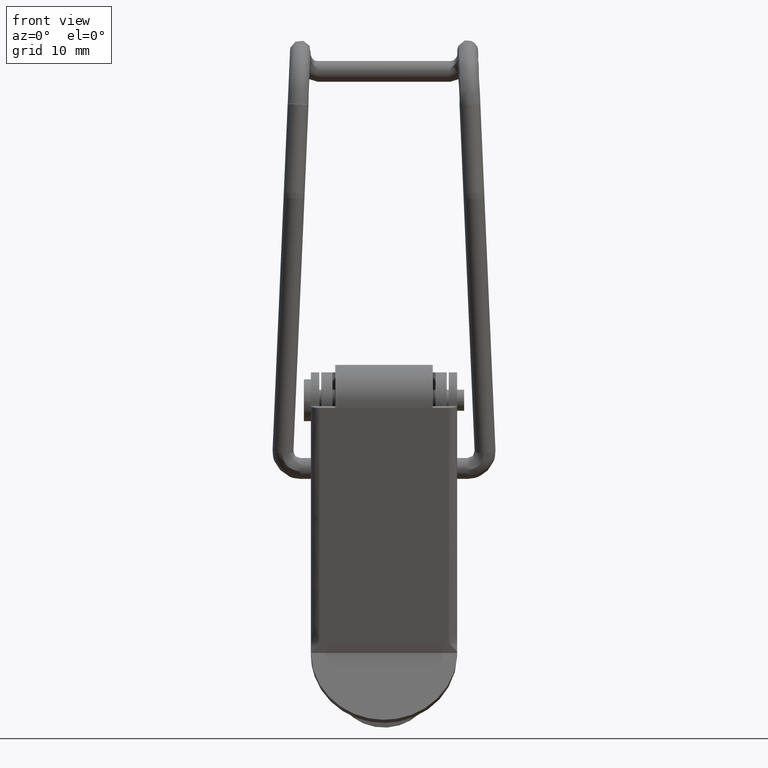
[diagram: clean part render]
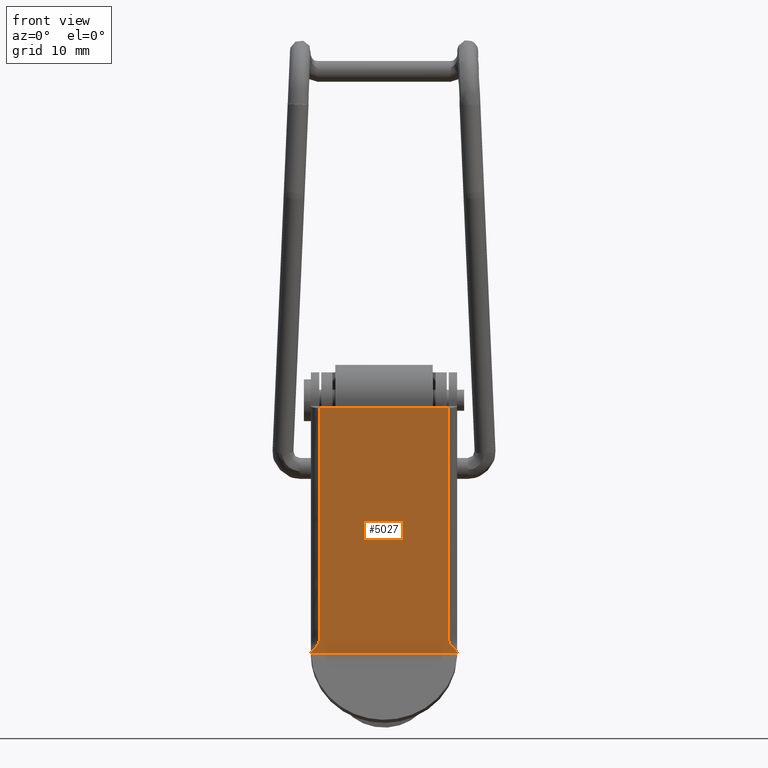
[diagram: same view with one face highlighted and labeled with its STEP entity id]
A machine part, front view. The second image highlights one B-rep face of the part: STEP entity #5027.
In plain terms, the highlighted face is a freeform B-spline surface patch.
Its self-contained STEP definition (entity closure, byte-faithful):
#4364=CARTESIAN_POINT('',(-9.299999999999999,-5.083145151805570,-1.096191299762750));
#4365=VERTEX_POINT('',#4364);
#4379=CARTESIAN_POINT('',(-10.500000000000000,2.464058606142225,-36.093305499922749));
#4380=VERTEX_POINT('',#4379);
#4391=CARTESIAN_POINT('',(-9.299999999999999,-5.083145151805568,-1.096191299762736));
#4392=CARTESIAN_POINT('',(-9.299999999999999,-2.687207450869761,-12.206386283940510));
#4393=CARTESIAN_POINT('',(-9.299999999999999,-0.291269749933954,-23.316581268118281));
#4394=CARTESIAN_POINT('',(-9.299999999999999,2.104667951001855,-34.426776252296051));
#4395=CARTESIAN_POINT('',(-9.299999999999999,2.224464836048645,-34.982286001504953));
#4396=CARTESIAN_POINT('',(-9.900000000000000,2.344261721095435,-35.537795750713848));
#4397=CARTESIAN_POINT('',(-10.500000000000000,2.464058606142225,-36.093305499922749));
#4398=B_SPLINE_CURVE_WITH_KNOTS('',3,(#4391,#4392,#4393,#4394,#4395,#4396,#4397),.UNSPECIFIED.,.F.,.U.,(4,3,4),(0.0,0.317460317460318,0.333333333333333),.UNSPECIFIED.);
#4399=EDGE_CURVE('',#4365,#4380,#4398,.T.);
#4433=CARTESIAN_POINT('',(9.299999999999999,-5.083145151805570,-1.096191299762750));
#4434=VERTEX_POINT('',#4433);
#4450=CARTESIAN_POINT('',(10.500000000000000,2.464058606142225,-36.093305499922749));
#4451=VERTEX_POINT('',#4450);
#4452=CARTESIAN_POINT('',(10.500000000000000,2.464058606142225,-36.093305499922749));
#4453=CARTESIAN_POINT('',(9.900000000000000,2.344261721095435,-35.537795750713848));
#4454=CARTESIAN_POINT('',(9.299999999999999,2.224464836048645,-34.982286001504953));
#4455=CARTESIAN_POINT('',(9.299999999999999,2.104667951001855,-34.426776252296051));
#4456=CARTESIAN_POINT('',(9.299999999999999,-0.291269749933952,-23.316581268118298));
#4457=CARTESIAN_POINT('',(9.299999999999999,-2.687207450869756,-12.206386283940530));
#4458=CARTESIAN_POINT('',(9.299999999999999,-5.083145151805561,-1.096191299762762));
#4459=B_SPLINE_CURVE_WITH_KNOTS('',3,(#4452,#4453,#4454,#4455,#4456,#4457,#4458),.UNSPECIFIED.,.F.,.U.,(4,3,4),(0.0,0.015873015873016,0.333333333333333),.UNSPECIFIED.);
#4460=EDGE_CURVE('',#4451,#4434,#4459,.T.);
#4493=CARTESIAN_POINT('',(10.498716428629100,2.505871555640285,-36.287196193159701));
#4494=VERTEX_POINT('',#4493);
#4495=CARTESIAN_POINT('',(10.498716428629100,2.505871555640285,-36.287196193159701));
#4496=CARTESIAN_POINT('',(10.499999996330192,2.484966418593745,-36.190257049597136));
#4497=CARTESIAN_POINT('',(10.500000000000000,2.464058606142225,-36.093305499922749));
#4505=(BOUNDED_CURVE()B_SPLINE_CURVE(2,(#4495,#4496,#4497),.UNSPECIFIED.,.F.,.U.)CURVE()GEOMETRIC_REPRESENTATION_ITEM()QUASI_UNIFORM_CURVE()RATIONAL_B_SPLINE_CURVE((1.0,0.999969438478005,1.0))REPRESENTATION_ITEM(''));
#4506=EDGE_CURVE('',#4494,#4451,#4505,.T.);
#4508=CARTESIAN_POINT('',(-10.498716428629100,2.505871555640285,-36.287196193159701));
#4509=VERTEX_POINT('',#4508);
#4525=CARTESIAN_POINT('',(-10.500000000000000,2.464058606142225,-36.093305499922749));
#4526=CARTESIAN_POINT('',(-10.500000000000005,2.484966358824232,-36.190256772440108));
#4527=CARTESIAN_POINT('',(-10.498716428629111,2.505871555640284,-36.287196193159701));
#4535=(BOUNDED_CURVE()B_SPLINE_CURVE(2,(#4525,#4526,#4527),.UNSPECIFIED.,.F.,.U.)CURVE()GEOMETRIC_REPRESENTATION_ITEM()QUASI_UNIFORM_CURVE()RATIONAL_B_SPLINE_CURVE((1.0,0.999969438309855,1.0))REPRESENTATION_ITEM(''));
#4536=EDGE_CURVE('',#4380,#4509,#4535,.T.);
#4593=CARTESIAN_POINT('',(-10.498716428629100,2.505871555640285,-36.287196193159701));
#4594=CARTESIAN_POINT('',(10.498716428629100,2.505871555640285,-36.287196193159701));
#4595=QUASI_UNIFORM_CURVE('',1,(#4593,#4594),.UNSPECIFIED.,.F.,.U.);
#4596=EDGE_CURVE('',#4509,#4494,#4595,.T.);
#4678=CARTESIAN_POINT('',(-7.0,-5.083145151805570,-1.096191299762750));
#4679=VERTEX_POINT('',#4678);
#4730=CARTESIAN_POINT('',(7.0,-5.083145151805570,-1.096191299762750));
#4731=VERTEX_POINT('',#4730);
#4835=CARTESIAN_POINT('',(7.0,-5.083145151805570,-1.096191299762750));
#4836=CARTESIAN_POINT('',(-7.0,-5.083145151805570,-1.096191299762750));
#4837=QUASI_UNIFORM_CURVE('',1,(#4835,#4836),.UNSPECIFIED.,.F.,.U.);
#4838=EDGE_CURVE('',#4731,#4679,#4837,.T.);
#5004=CARTESIAN_POINT('',(-11.548949959297930,-5.462216521633499,0.661599326455436));
#5005=CARTESIAN_POINT('',(-11.548949959297930,2.884943129021514,-38.044987763274193));
#5006=CARTESIAN_POINT('',(11.548950522561819,-5.462216521633499,0.661599326455436));
#5007=CARTESIAN_POINT('',(11.548950522561819,2.884943129021514,-38.044987763274193));
#5008=B_SPLINE_SURFACE_WITH_KNOTS('',1,1,((#5004,#5006),(#5005,#5007)),.UNSPECIFIED.,.F.,.F.,.U.,(2,2),(2,2),(0.0,39.596400825938048),(0.0,23.097900481859750),.UNSPECIFIED.);
#5009=ORIENTED_EDGE('',*,*,#4506,.T.);
#5010=ORIENTED_EDGE('',*,*,#4460,.T.);
#5011=CARTESIAN_POINT('',(7.0,-5.083145151805570,-1.096191299762750));
#5012=CARTESIAN_POINT('',(9.299999999999999,-5.083145151805570,-1.096191299762750));
#5013=QUASI_UNIFORM_CURVE('',1,(#5011,#5012),.UNSPECIFIED.,.F.,.U.);
#5014=EDGE_CURVE('',#4731,#4434,#5013,.T.);
#5015=ORIENTED_EDGE('',*,*,#5014,.F.);
#5016=ORIENTED_EDGE('',*,*,#4838,.T.);
#5017=CARTESIAN_POINT('',(-9.299999999999999,-5.083145151805570,-1.096191299762750));
#5018=CARTESIAN_POINT('',(-7.0,-5.083145151805570,-1.096191299762750));
#5019=QUASI_UNIFORM_CURVE('',1,(#5017,#5018),.UNSPECIFIED.,.F.,.U.);
#5020=EDGE_CURVE('',#4365,#4679,#5019,.T.);
#5021=ORIENTED_EDGE('',*,*,#5020,.F.);
#5022=ORIENTED_EDGE('',*,*,#4399,.T.);
#5023=ORIENTED_EDGE('',*,*,#4536,.T.);
#5024=ORIENTED_EDGE('',*,*,#4596,.T.);
#5025=EDGE_LOOP('',(#5009,#5010,#5015,#5016,#5021,#5022,#5023,#5024));
#5026=FACE_OUTER_BOUND('',#5025,.T.);
#5027=ADVANCED_FACE('',(#5026),#5008,.T.);